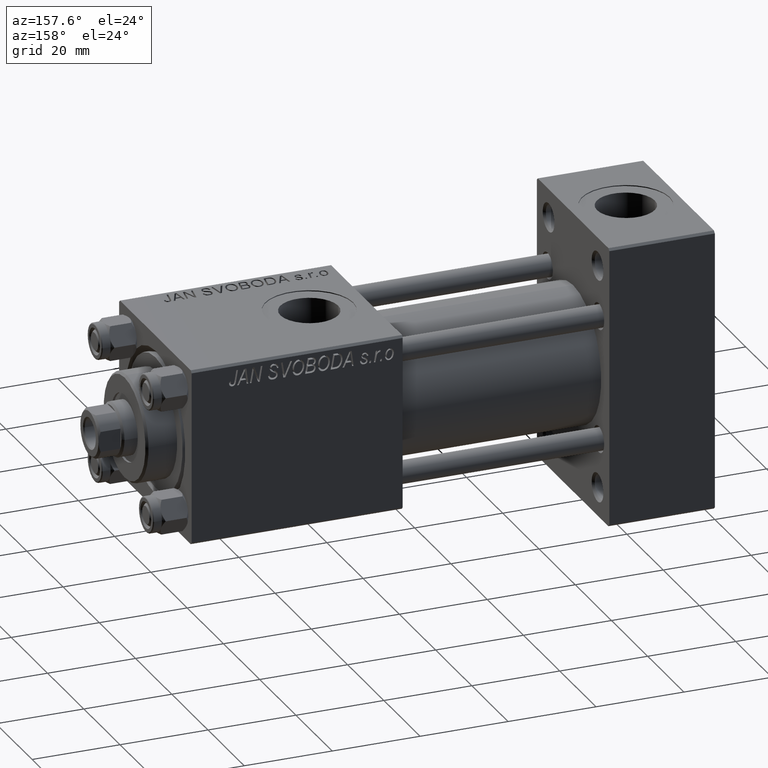
[diagram: clean part render]
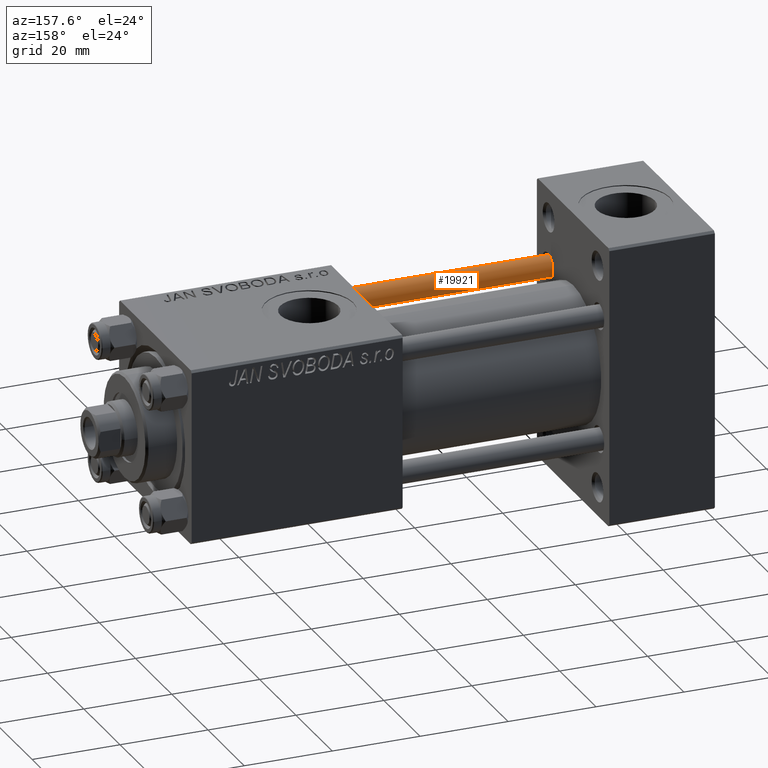
[diagram: same view with one face highlighted and labeled with its STEP entity id]
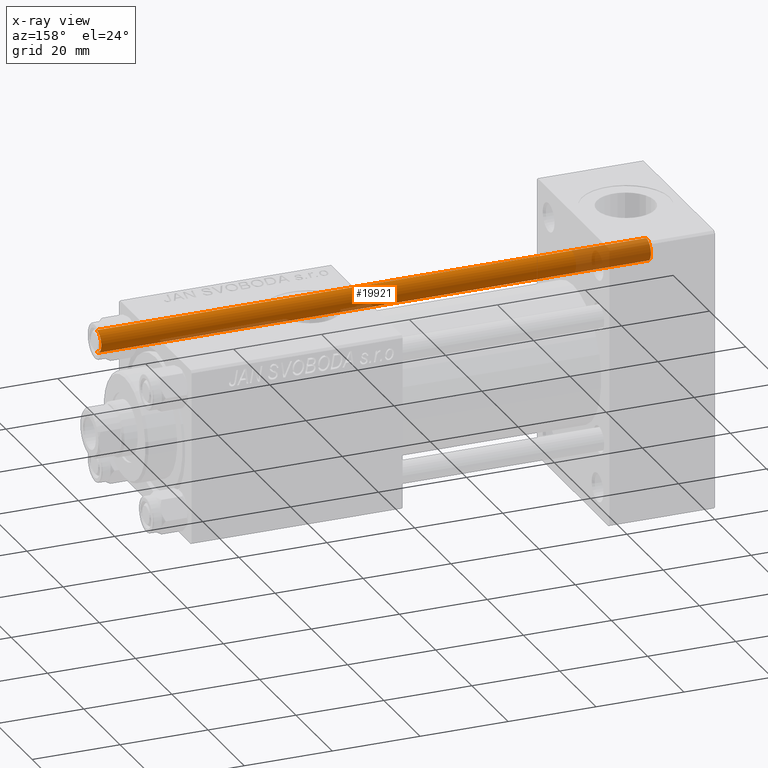
[diagram: x-ray of the same camera — body ghosted, the highlighted face saturated]
A machine part, auxiliary view. The second image highlights one B-rep face of the part: STEP entity #19921.
The next image is the same camera in x-ray: the body ghosted, the highlighted face saturated — about 17% of this face is hidden behind the body in this view.
In plain terms, the highlighted cylindrical surface (edge-blend (fillet) strip) has radius 2.5 mm, axis along (-1, 0, -0).
Its self-contained STEP definition (entity closure, byte-faithful):
#468 = EDGE_LOOP ( 'NONE', ( #8920, #4255, #33360, #16117 ) ) ;
#1068 = CARTESIAN_POINT ( 'NONE',  ( 2.500000000000000000, 3.061616997868383141E-16, 125.5000000000000568 ) ) ;
#1101 = DIRECTION ( 'NONE',  ( 1.000000000000000000, 0.000000000000000000, 0.000000000000000000 ) ) ;
#1241 = CYLINDRICAL_SURFACE ( 'NONE', #47258, 2.500000000000000000 ) ;
#1966 = CARTESIAN_POINT ( 'NONE',  ( -2.500000000000000000, 0.000000000000000000, 0.5000000000000004441 ) ) ;
#4255 = ORIENTED_EDGE ( 'NONE', *, *, #7485, .T. ) ;
#4661 = DIRECTION ( 'NONE',  ( -0.000000000000000000, -0.000000000000000000, 1.000000000000000000 ) ) ;
#7485 = EDGE_CURVE ( 'NONE', #47096, #33046, #42087, .T. ) ;
#7711 = LINE ( 'NONE', #47746, #37490 ) ;
#8920 = ORIENTED_EDGE ( 'NONE', *, *, #10615, .T. ) ;
#10395 = DIRECTION ( 'NONE',  ( 0.000000000000000000, 0.000000000000000000, -1.000000000000000000 ) ) ;
#10615 = EDGE_CURVE ( 'NONE', #12904, #47096, #18254, .T. ) ;
#11303 = CARTESIAN_POINT ( 'NONE',  ( 2.500000000000000000, 3.061616997868383141E-16, 0.5000000000000004441 ) ) ;
#12013 = VERTEX_POINT ( 'NONE', #1966 ) ;
#12904 = VERTEX_POINT ( 'NONE', #41826 ) ;
#16117 = ORIENTED_EDGE ( 'NONE', *, *, #17866, .F. ) ;
#17866 = EDGE_CURVE ( 'NONE', #12904, #12013, #7711, .T. ) ;
#18254 = CIRCLE ( 'NONE', #19084, 2.500000000000000000 ) ;
#19084 = AXIS2_PLACEMENT_3D ( 'NONE', #30093, #10395, #22254 ) ;
#19921 = ADVANCED_FACE ( 'NONE', ( #21191 ), #1241, .T. ) ;
#20937 = DIRECTION ( 'NONE',  ( -1.000000000000000000, 0.000000000000000000, 0.000000000000000000 ) ) ;
#21191 = FACE_OUTER_BOUND ( 'NONE', #468, .T. ) ;
#22254 = DIRECTION ( 'NONE',  ( 1.000000000000000000, 0.000000000000000000, 0.000000000000000000 ) ) ;
#23839 = CARTESIAN_POINT ( 'NONE',  ( 0.000000000000000000, 0.000000000000000000, 0.5000000000000004441 ) ) ;
#29017 = AXIS2_PLACEMENT_3D ( 'NONE', #23839, #4661, #1101 ) ;
#29843 = CIRCLE ( 'NONE', #29017, 2.500000000000000000 ) ;
#30093 = CARTESIAN_POINT ( 'NONE',  ( 0.000000000000000000, 0.000000000000000000, 125.5000000000000568 ) ) ;
#30239 = CARTESIAN_POINT ( 'NONE',  ( 2.500000000000000000, 3.061616997868383141E-16, 126.0000000000000000 ) ) ;
#30983 = DIRECTION ( 'NONE',  ( -0.000000000000000000, -0.000000000000000000, -1.000000000000000000 ) ) ;
#32272 = EDGE_CURVE ( 'NONE', #33046, #12013, #29843, .T. ) ;
#32877 = DIRECTION ( 'NONE',  ( -0.000000000000000000, -0.000000000000000000, -1.000000000000000000 ) ) ;
#33046 = VERTEX_POINT ( 'NONE', #11303 ) ;
#33360 = ORIENTED_EDGE ( 'NONE', *, *, #32272, .T. ) ;
#36085 = CARTESIAN_POINT ( 'NONE',  ( 0.000000000000000000, 0.000000000000000000, 126.0000000000000000 ) ) ;
#36840 = DIRECTION ( 'NONE',  ( -0.000000000000000000, -0.000000000000000000, -1.000000000000000000 ) ) ;
#37490 = VECTOR ( 'NONE', #32877, 1000.000000000000000 ) ;
#41826 = CARTESIAN_POINT ( 'NONE',  ( -2.500000000000000000, 0.000000000000000000, 125.5000000000000568 ) ) ;
#42087 = LINE ( 'NONE', #30239, #44759 ) ;
#44759 = VECTOR ( 'NONE', #30983, 1000.000000000000000 ) ;
#47096 = VERTEX_POINT ( 'NONE', #1068 ) ;
#47258 = AXIS2_PLACEMENT_3D ( 'NONE', #36085, #36840, #20937 ) ;
#47746 = CARTESIAN_POINT ( 'NONE',  ( -2.500000000000000000, 0.000000000000000000, 126.0000000000000000 ) ) ;